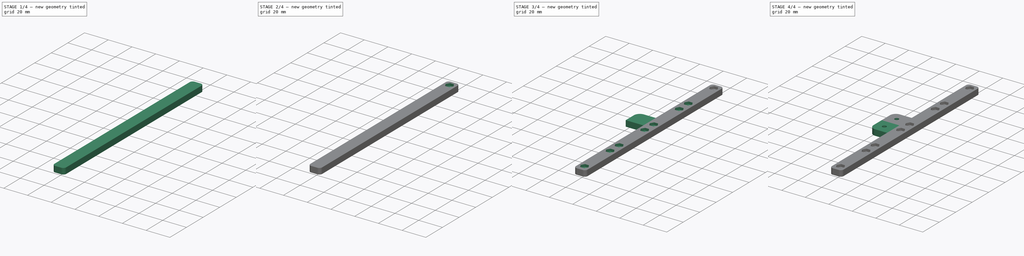
[diagram: build sequence overview — one tinted view per stage of 4, left to right]
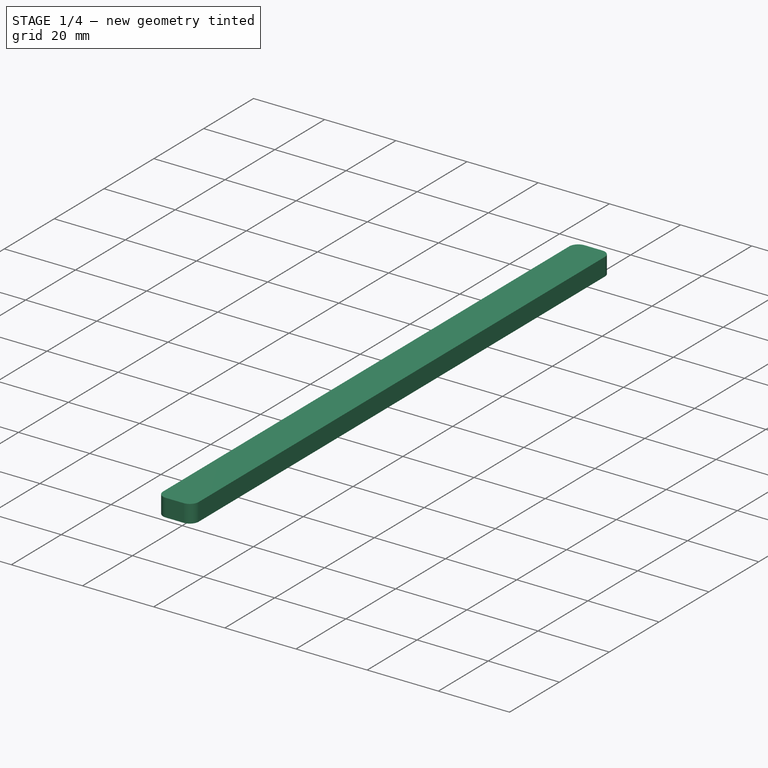
[diagram: stage 1 of 4 — iso view after this stage's code; geometry added in this stage tinted green]
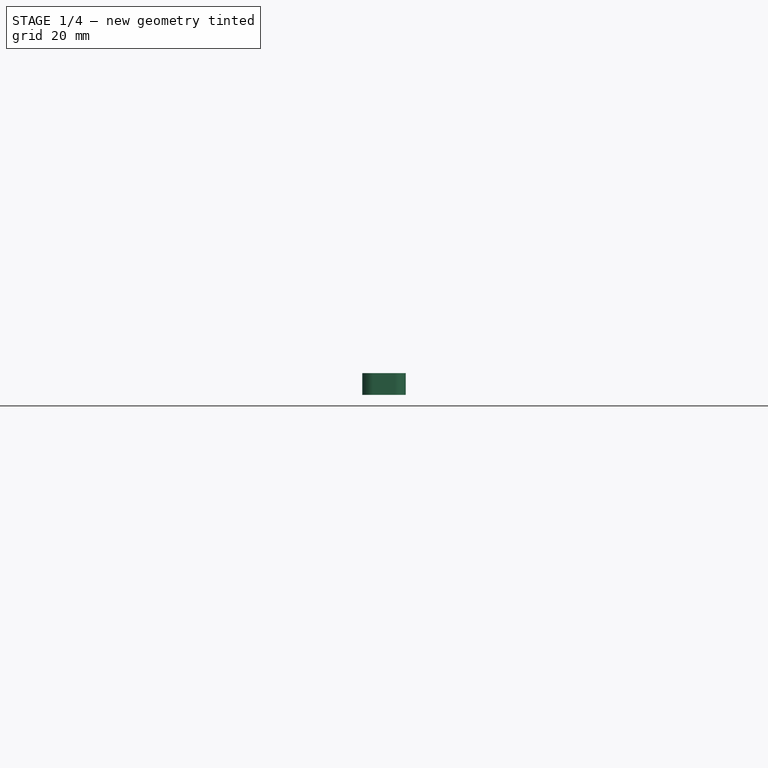
[diagram: stage 1 of 4 — front view after this stage's code; geometry added in this stage tinted green]
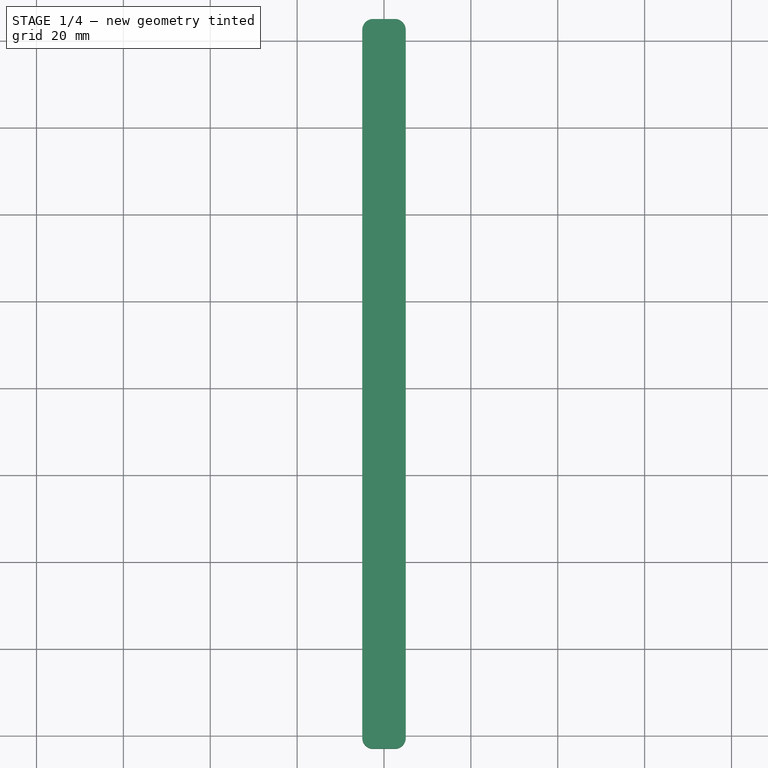
[diagram: stage 1 of 4 — top view after this stage's code; geometry added in this stage tinted green]
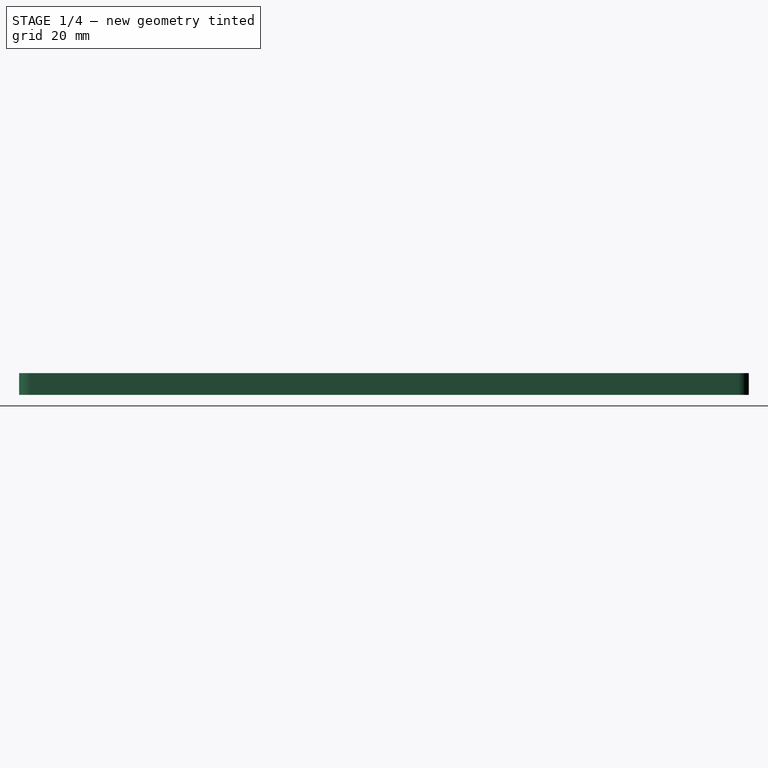
[diagram: stage 1 of 4 — right view after this stage's code; geometry added in this stage tinted green]
FCSTD DOCUMENT  (FreeCAD 0.19R)
Label: Rack_for_post
License: All rights reserved
LicenseURL: http://en.wikipedia.org/wiki/All_rights_reserved
objects: Sketcher::SketchObject×6, PartDesign::Pad×2, PartDesign::Mirrored×2, PartDesign::Pocket×2, PartDesign::Hole×2, PartDesign::LinearPattern×2, PartDesign::MultiTransform×1, PartDesign::Body×1
note: 24 computed .brp shape members not serialized (recipe doc carries the construction recipe); baked Part::Feature solids carry a one-line shape summary decoded from their .brp

FEATURE [Sketcher::SketchObject] Sketch  label="rod_sketch"
  FullyConstrained = true
  MapMode = 5
  Support = -> [XY_Plane]
  sketch-geometry (8):
    g0: LineSegment StartX=0 StartY=5 StartZ=0 EndX=-2.5 EndY=5 EndZ=0
    g1: LineSegment StartX=-5 StartY=2.5 StartZ=0 EndX=-5 EndY=-160.5 EndZ=0
    g2: LineSegment StartX=-2.5 StartY=-163 StartZ=0 EndX=0 EndY=-163 EndZ=0
    g3: LineSegment StartX=0 StartY=-163 StartZ=0 EndX=0 EndY=5 EndZ=0
    g4: ArcOfCircle CenterX=-2.5 CenterY=2.5 CenterZ=0 NormalX=0 NormalY=0 NormalZ=1 AngleXU=0 Radius=2.5 StartAngle=1.5708 EndAngle=3.14159
    g5: GeomPoint X=-5 Y=5 Z=0
    g6: ArcOfCircle CenterX=-2.5 CenterY=-160.5 CenterZ=0 NormalX=0 NormalY=0 NormalZ=1 AngleXU=0 Radius=2.5 StartAngle=3.14159 EndAngle=4.71239
    g7: GeomPoint X=-5 Y=-163 Z=0
  constraints (20):
    c: Coincident(g2,g3)
    c: Coincident(g3,g0)
    c: Horizontal(g0)
    c: Horizontal(g2)
    c: Vertical(g1)
    c: Vertical(g3)
    c: PointOnObject(g0,g-2)
    c: DistanceX(g5,g0) = 5
    c: Distance(g0,g-1) = 5
    c: PointOnObject(g5,g0)
    c: PointOnObject(g5,g1)
    c: Tangent(g0,g4) = -1.5708
    c: Tangent(g1,g4) = -1.5708
    c: Radius(g4) = 2.5
    c: DistanceY(g3,g3) = 168
    c: PointOnObject(g7,g2)
    c: PointOnObject(g7,g1)
    c: Tangent(g2,g6) = -1.5708
    c: Tangent(g1,g6) = -1.5708
    c: Radius(g6) = 2.5
FEATURE [PartDesign::Pad] Pad  label="rod"
  Direction = (1,1,1)
  Length = 5
  Length2 = 100
  Profile = -> Sketch
  Type = 0
FEATURE [PartDesign::Mirrored] Mirrored  label="rod_mirror"
  BaseFeature = -> Pad
  MirrorPlane = -> Sketch [V_Axis]
  Originals = -> [Pad]
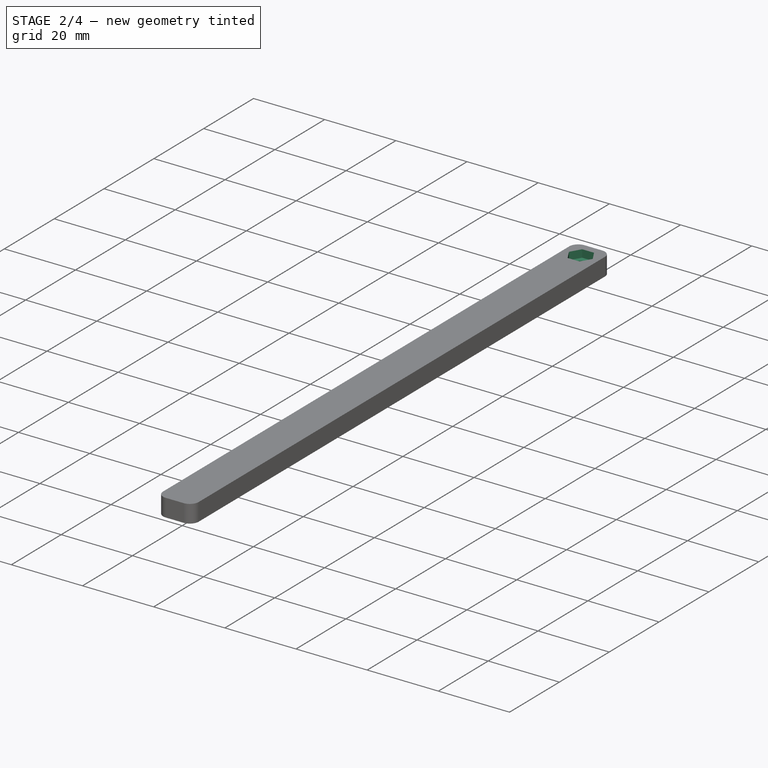
[diagram: stage 2 of 4 — iso view after this stage's code; geometry added in this stage tinted green]
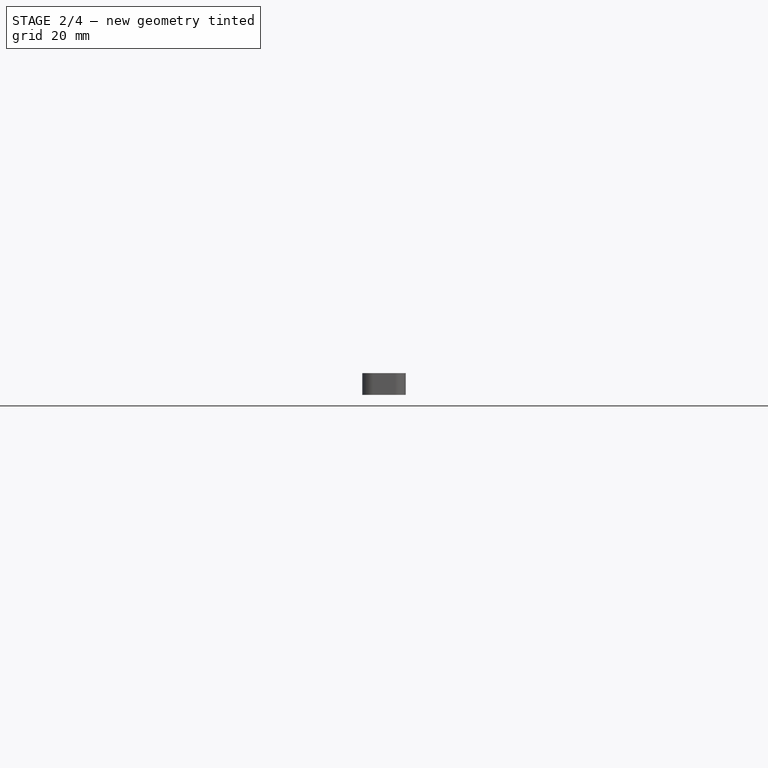
[diagram: stage 2 of 4 — front view after this stage's code; geometry added in this stage tinted green]
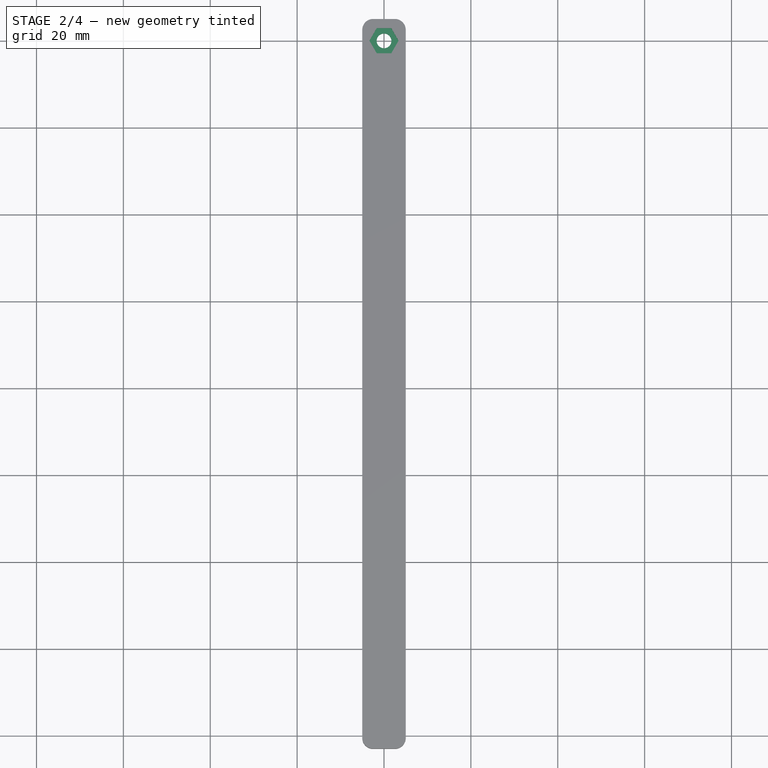
[diagram: stage 2 of 4 — top view after this stage's code; geometry added in this stage tinted green]
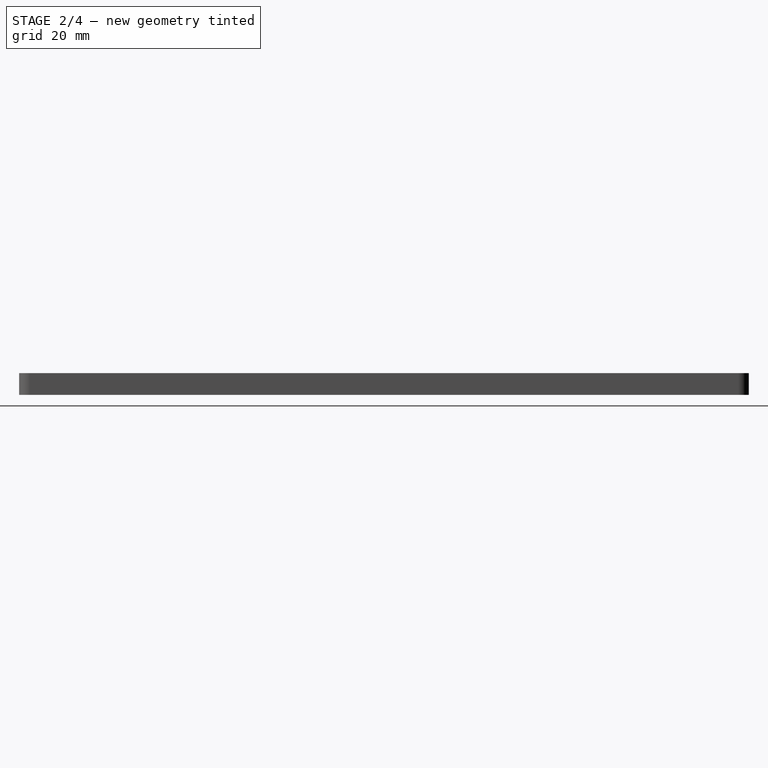
[diagram: stage 2 of 4 — right view after this stage's code; geometry added in this stage tinted green]
FEATURE [Sketcher::SketchObject] Sketch001  label="M3_hex_sketch"
  FullyConstrained = true
  MapMode = 5
  Placement = pos=(0,0,5) rot=(0,0,1;0rad)
  Support = -> [Mirrored]
  sketch-geometry (7):
    g0: LineSegment StartX=3.34863 StartY=0 StartZ=0 EndX=1.67432 EndY=2.9 EndZ=0
    g1: LineSegment StartX=1.67432 StartY=2.9 StartZ=0 EndX=-1.67432 EndY=2.9 EndZ=0
    g2: LineSegment StartX=-1.67432 StartY=2.9 StartZ=0 EndX=-3.34863 EndY=0 EndZ=0
    g3: LineSegment StartX=-3.34863 StartY=0 StartZ=0 EndX=-1.67432 EndY=-2.9 EndZ=0
    g4: LineSegment StartX=-1.67432 StartY=-2.9 StartZ=0 EndX=1.67432 EndY=-2.9 EndZ=0
    g5: LineSegment StartX=1.67432 StartY=-2.9 StartZ=0 EndX=3.34863 EndY=0 EndZ=0
    g6: Circle CenterX=0 CenterY=0 CenterZ=0 NormalX=0 NormalY=0 NormalZ=1 AngleXU=0 Radius=3.34863
  constraints (16):
    c: Coincident(g0,g1)
    c: Coincident(g1,g2)
    c: Coincident(g2,g3)
    c: Coincident(g3,g4)
    c: Coincident(g4,g5)
    c: Coincident(g5,g0)
    c: Equal(g0, g1-g5) x5
    c: PointOnObject(g0,g6)
    c: PointOnObject(g1,g6)
    c: PointOnObject(g2,g6)
    c: PointOnObject(g3,g6)
    c: PointOnObject(g4,g6)
    c: PointOnObject(g5,g6)
    c: Coincident(g6,g-1)
    c: PointOnObject(g5,g-1)
    c: DistanceY(g3,g1) = 5.8
FEATURE [PartDesign::Pocket] Pocket  label="M3_hex"
  BaseFeature = -> Mirrored
  Length = 2.15
  Length2 = 100
  Profile = -> Sketch001
  Type = 0
FEATURE [Sketcher::SketchObject] Sketch002  label="M3_hole_sektch"
  FullyConstrained = true
  MapMode = 5
  Placement = pos=(0,0,2.85) rot=(0,0,1;0rad)
  Support = -> [Pocket]
  sketch-geometry (1):
    g0: Circle CenterX=0 CenterY=0 CenterZ=0 NormalX=0 NormalY=0 NormalZ=1 AngleXU=0 Radius=1
  constraints (2):
    c: Coincident(g0,g-1)
    c: Radius(g0) = 1
FEATURE [PartDesign::Hole] Hole  label="M3_hole"
  BaseFeature = -> Pocket
  Depth = 25
  DepthType = 1
  Diameter = 3.4
  DrillForDepth = false
  DrillPoint = 1
  DrillPointAngle = 118
  HoleCutCountersinkAngle = 90
  HoleCutCustomValues = false
  HoleCutDepth = 0
  HoleCutDiameter = 6.1
  HoleCutType = 0
  ModelActualThread = false
  Profile = -> Sketch002
  Tapered = false
  TaperedAngle = 90
  ThreadAngle = 0
  ThreadClass = 0
  ThreadCutOffInner = 0
  ThreadCutOffOuter = 0
  ThreadDirection = 0
  ThreadFit = 0
  ThreadPitch = 0
  ThreadSize = 9
  ThreadType = 1
  Threaded = false
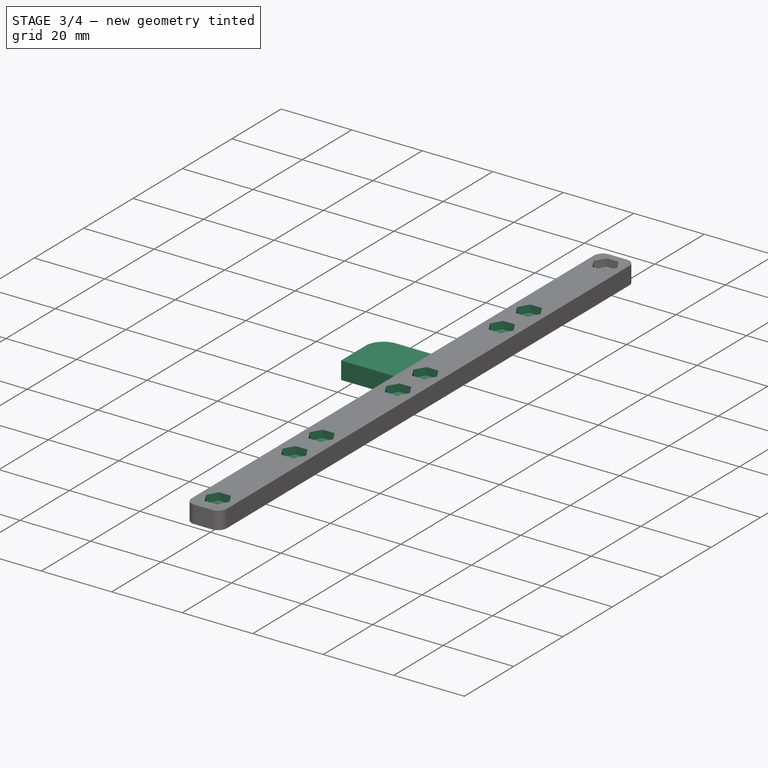
[diagram: stage 3 of 4 — iso view after this stage's code; geometry added in this stage tinted green]
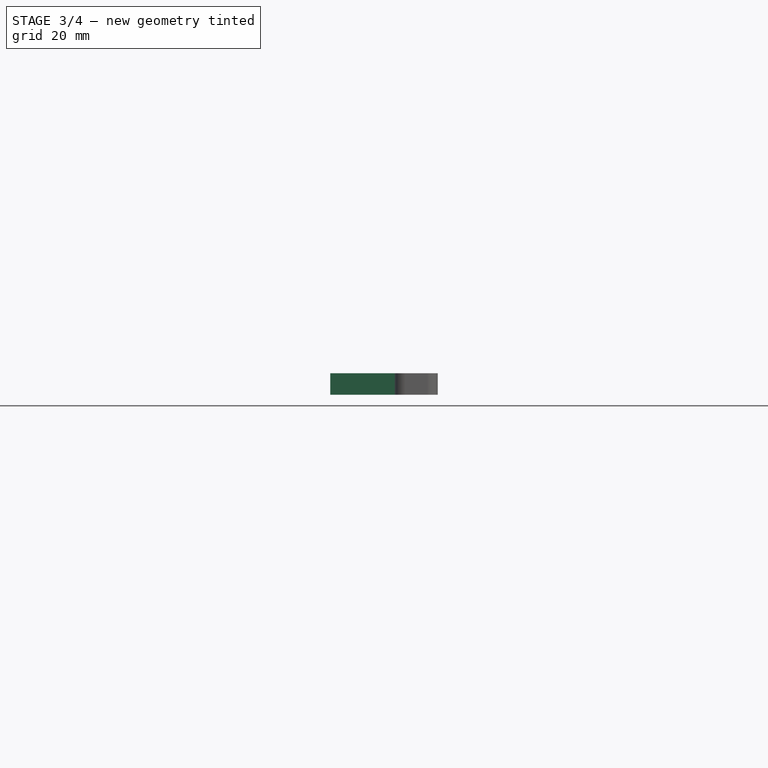
[diagram: stage 3 of 4 — front view after this stage's code; geometry added in this stage tinted green]
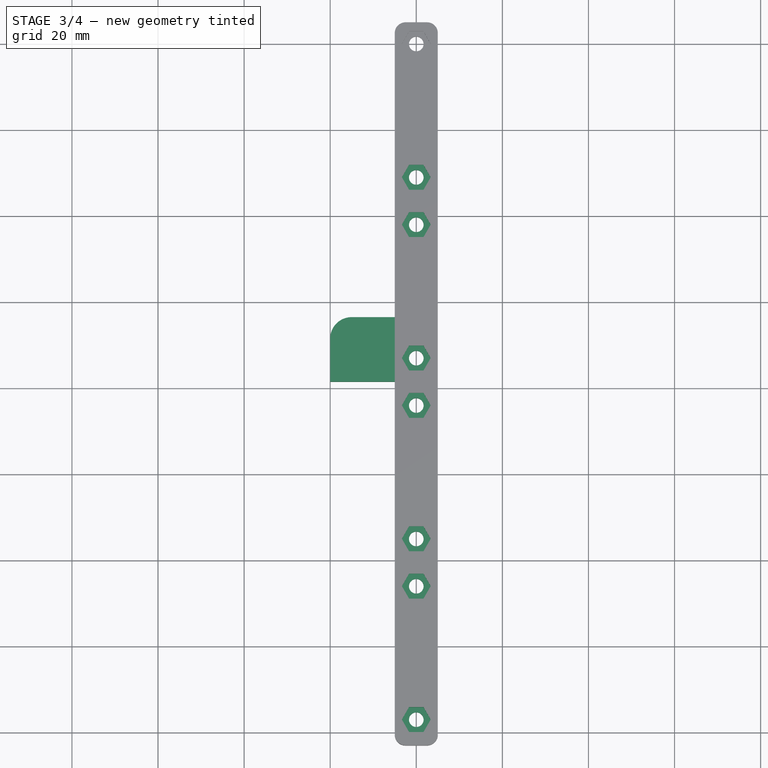
[diagram: stage 3 of 4 — top view after this stage's code; geometry added in this stage tinted green]
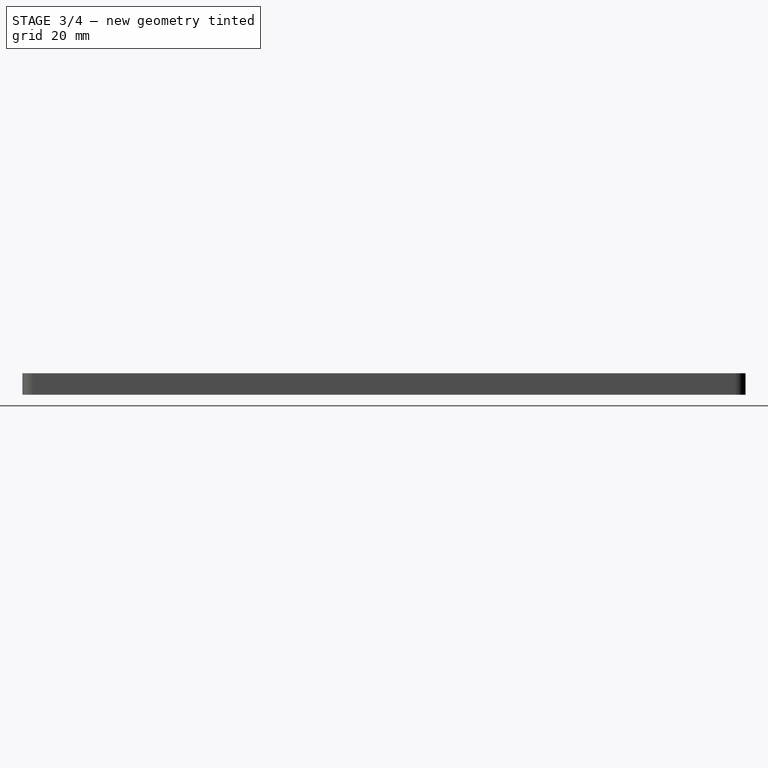
[diagram: stage 3 of 4 — right view after this stage's code; geometry added in this stage tinted green]
FEATURE [PartDesign::LinearPattern] LinearPattern
  Direction = -> Sketch001 [V_Axis]
  Length = 31
  Occurrences = 2
  Reversed = true
FEATURE [PartDesign::LinearPattern] LinearPattern001
  Direction = -> Sketch001 [V_Axis]
  Length = 126
  Occurrences = 4
  Reversed = true
FEATURE [PartDesign::MultiTransform] MultiTransform  label="M3_sys_array"
  BaseFeature = -> Hole
  Originals = -> [Pocket,Hole]
  Transformations = -> [LinearPattern,LinearPattern001]
FEATURE [Sketcher::SketchObject] Sketch003  label="half_ear_sketch"
  ExternalGeometry = -> [MultiTransform]
  FullyConstrained = true
  MapMode = 5
  Placement = pos=(0,0,5) rot=(0,0,1;0rad)
  Support = -> [MultiTransform]
  sketch-geometry (10):
    g0: GeomPoint X=0 Y=-78.5 Z=0
    g1: LineSegment StartX=0 StartY=-75.9 StartZ=0 EndX=0 EndY=-78.5 EndZ=0
    g2: LineSegment StartX=0 StartY=-78.5 StartZ=0 EndX=0 EndY=-81.1 EndZ=0
    g3: LineSegment StartX=0 StartY=-78.5 StartZ=0 EndX=-5 EndY=-78.5 EndZ=0
    g4: LineSegment StartX=-5 StartY=-78.5 StartZ=0 EndX=-20 EndY=-78.5 EndZ=0
    g5: LineSegment StartX=-20 StartY=-78.5 StartZ=0 EndX=-20 EndY=-68.5 EndZ=0
    g6: LineSegment StartX=-15 StartY=-63.5 StartZ=0 EndX=-5 EndY=-63.5 EndZ=0
    g7: LineSegment StartX=-5 StartY=-63.5 StartZ=0 EndX=-5 EndY=-78.5 EndZ=0
    g8: ArcOfCircle CenterX=-15 CenterY=-68.5 CenterZ=0 NormalX=0 NormalY=0 NormalZ=1 AngleXU=0 Radius=5 StartAngle=1.5708 EndAngle=3.14159
    g9: GeomPoint X=-20 Y=-63.5 Z=0
  constraints (24):
    c: Coincident(g1,g-3)
    c: Coincident(g1,g0)
    c: Vertical(g1)
    c: Coincident(g2,g1)
    c: Coincident(g2,g-3)
    c: Equal(g1,g2)
    c: Coincident(g3,g0)
    c: PointOnObject(g3,g-4)
    c: Horizontal(g3)
    c: Coincident(g4,g5)
    c: Coincident(g6,g7)
    c: Coincident(g7,g4)
    c: Horizontal(g4)
    c: Horizontal(g6)
    c: Vertical(g5)
    c: Vertical(g7)
    c: Coincident(g4,g3)
    c: DistanceY(g7,g7) = 15
    c: DistanceX(g4,g4) = 15
    c: PointOnObject(g9,g5)
    c: PointOnObject(g9,g6)
    c: Tangent(g5,g8) = 1.5708
    c: Tangent(g6,g8) = 1.5708
    c: Radius(g8) = 5
FEATURE [PartDesign::Pad] Pad001  label="half_ear"
  BaseFeature = -> MultiTransform
  Direction = (1,1,1)
  Length = 5
  Length2 = 100
  Profile = -> Sketch003
  Reversed = true
  Type = 0
FEATURE [Sketcher::SketchObject] Sketch004  label="M3_hex_sketch_2"
  ExternalGeometry = -> [Pad001]
  FullyConstrained = true
  MapMode = 5
  Placement = pos=(0,0,9e-16) rot=(1,0,0;3.14159rad)
  Support = -> [Pad001]
  sketch-geometry (8):
    g0: GeomPoint X=-12.5 Y=71 Z=0
    g1: LineSegment StartX=-9.6 StartY=72.6743 StartZ=0 EndX=-12.5 EndY=74.3486 EndZ=0
    g2: LineSegment StartX=-12.5 StartY=74.3486 StartZ=0 EndX=-15.4 EndY=72.6743 EndZ=0
    g3: LineSegment StartX=-15.4 StartY=72.6743 StartZ=0 EndX=-15.4 EndY=69.3257 EndZ=0
    g4: LineSegment StartX=-15.4 StartY=69.3257 StartZ=0 EndX=-12.5 EndY=67.6514 EndZ=0
    g5: LineSegment StartX=-12.5 StartY=67.6514 StartZ=0 EndX=-9.6 EndY=69.3257 EndZ=0
    g6: LineSegment StartX=-9.6 StartY=69.3257 StartZ=0 EndX=-9.6 EndY=72.6743 EndZ=0
    g7: Circle CenterX=-12.5 CenterY=71 CenterZ=0 NormalX=0 NormalY=0 NormalZ=1 AngleXU=0 Radius=3.34863
  constraints (18):
    c: Distance(g0,g-4) = 7.5
    c: Distance(g0,g-3) = 7.5
    c: Coincident(g1,g2)
    c: Coincident(g2,g3)
    c: Coincident(g3,g4)
    c: Coincident(g4,g5)
    c: Coincident(g5,g6)
    c: Coincident(g6,g1)
    c: Equal(g1, g2-g6) x5
    c: PointOnObject(g1,g7)
    c: PointOnObject(g2,g7)
    c: PointOnObject(g3,g7)
    c: PointOnObject(g4,g7)
    c: PointOnObject(g5,g7)
    c: PointOnObject(g6,g7)
    c: Coincident(g7,g0)
    c: Vertical(g6)
    c: Distance(g2,g1) = 5.8
FEATURE [PartDesign::Pocket] Pocket001  label="M3_hex_2"
  BaseFeature = -> Pad001
  Length = 2.15
  Length2 = 100
  Profile = -> Sketch004
  Type = 0
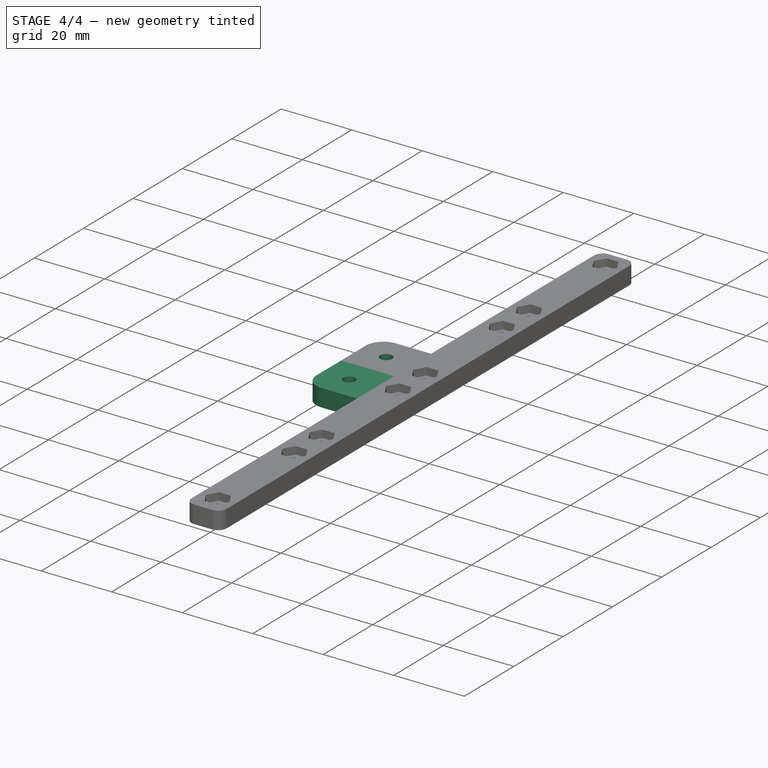
[diagram: stage 4 of 4 — iso view after this stage's code; geometry added in this stage tinted green]
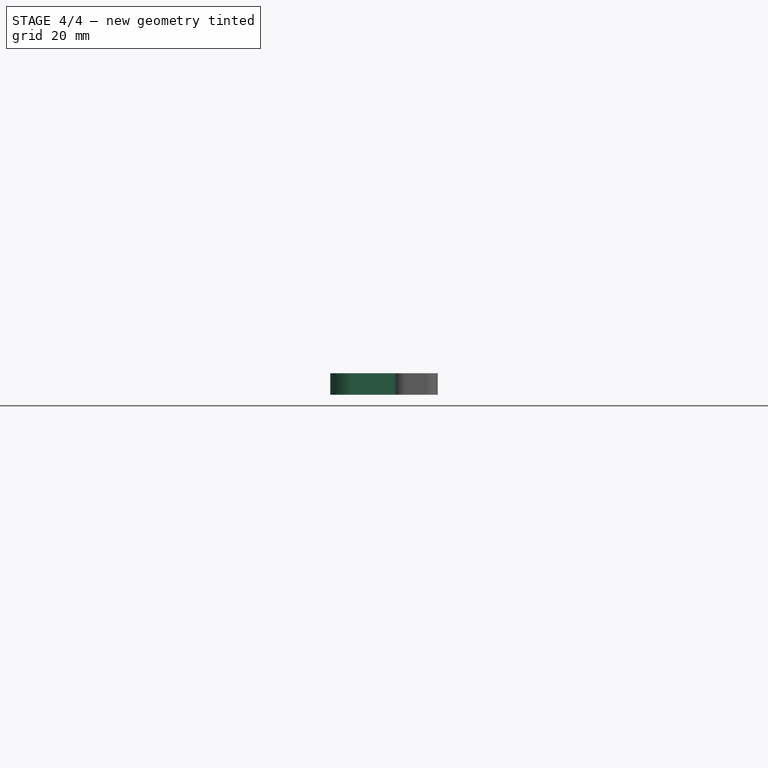
[diagram: stage 4 of 4 — front view after this stage's code; geometry added in this stage tinted green]
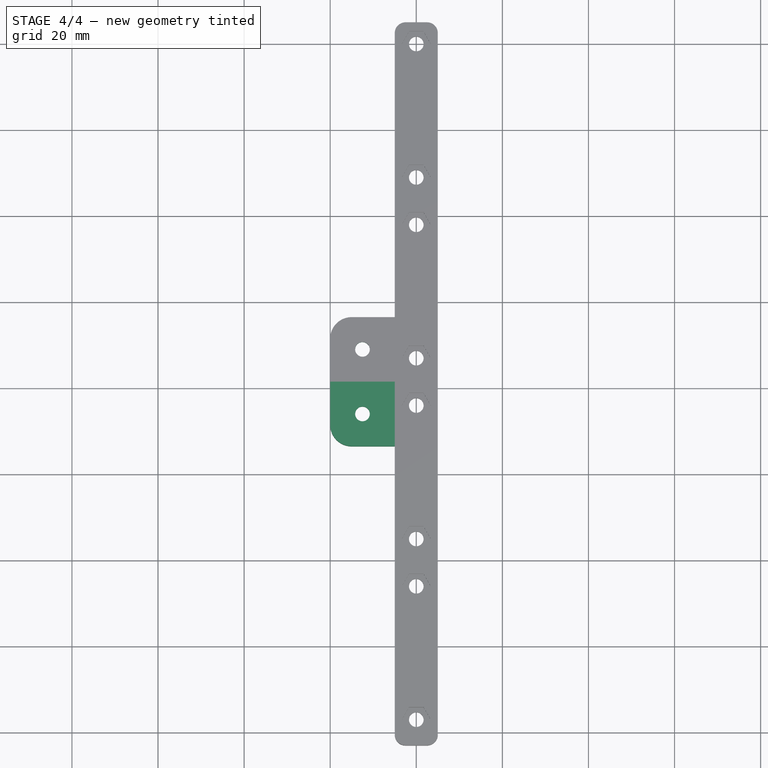
[diagram: stage 4 of 4 — top view after this stage's code; geometry added in this stage tinted green]
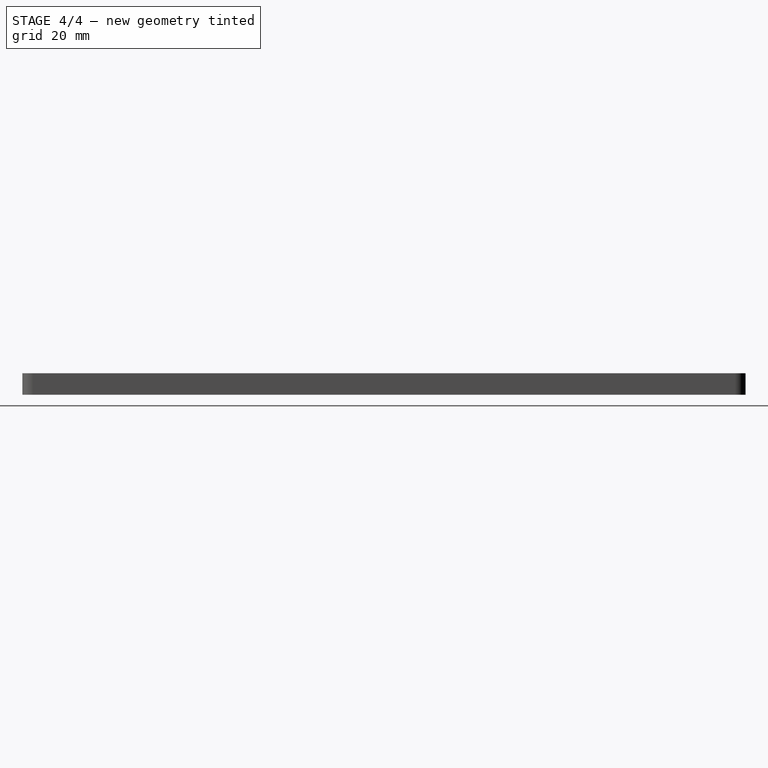
[diagram: stage 4 of 4 — right view after this stage's code; geometry added in this stage tinted green]
FEATURE [Sketcher::SketchObject] Sketch005  label="M3_hole_sketch_2"
  ExternalGeometry = -> [Pocket001]
  FullyConstrained = true
  MapMode = 5
  Placement = pos=(0,0,2.15) rot=(1,0,0;3.14159rad)
  Support = -> [Pocket001]
  sketch-geometry (5):
    g0: LineSegment StartX=-12.5 StartY=74.3486 StartZ=0 EndX=-12.5 EndY=67.6514 EndZ=0
    g1: GeomPoint X=-12.5 Y=71 Z=0
    g2: LineSegment StartX=-12.5 StartY=74.3486 StartZ=0 EndX=-12.5 EndY=71 EndZ=0
    g3: LineSegment StartX=-12.5 StartY=71 StartZ=0 EndX=-12.5 EndY=67.6514 EndZ=0
    g4: Circle CenterX=-12.5 CenterY=71 CenterZ=0 NormalX=0 NormalY=0 NormalZ=1 AngleXU=0 Radius=1
  constraints (10):
    c: Coincident(g0,g-3)
    c: Coincident(g0,g-4)
    c: PointOnObject(g1,g0)
    c: Coincident(g2,g0)
    c: Coincident(g2,g1)
    c: Coincident(g3,g1)
    c: Coincident(g3,g0)
    c: Equal(g2,g3)
    c: Coincident(g4,g1)
    c: Radius(g4) = 1
FEATURE [PartDesign::Hole] Hole001  label="M3_hole_2"
  BaseFeature = -> Pocket001
  Depth = 25
  DepthType = 1
  Diameter = 3.4
  DrillForDepth = false
  DrillPoint = 1
  DrillPointAngle = 118
  HoleCutCountersinkAngle = 90
  HoleCutCustomValues = false
  HoleCutDepth = 0
  HoleCutDiameter = 6.1
  HoleCutType = 0
  ModelActualThread = false
  Profile = -> Sketch005
  Tapered = false
  TaperedAngle = 90
  ThreadAngle = 0
  ThreadClass = 0
  ThreadCutOffInner = 0
  ThreadCutOffOuter = 0
  ThreadDirection = 0
  ThreadFit = 0
  ThreadPitch = 0
  ThreadSize = 9
  ThreadType = 1
  Threaded = false
FEATURE [PartDesign::Mirrored] Mirrored001  label="ear"
  BaseFeature = -> Hole001
  MirrorPlane = -> Hole001 [Face82]
  Originals = -> [Pad001,Pocket001,Hole001]
FEATURE [PartDesign::Body] Body  label="Rack_for_post"
  Group = -> [Sketch,Pad,Mirrored,Sketch001,Pocket,Sketch002,Hole,MultiTransform,LinearPattern,LinearPattern001,Sketch003,Pad001,Sketch004,Pocket001,Sketch005,Hole001,Mirrored001]
  Origin = -> Origin
  Tip = -> Mirrored001
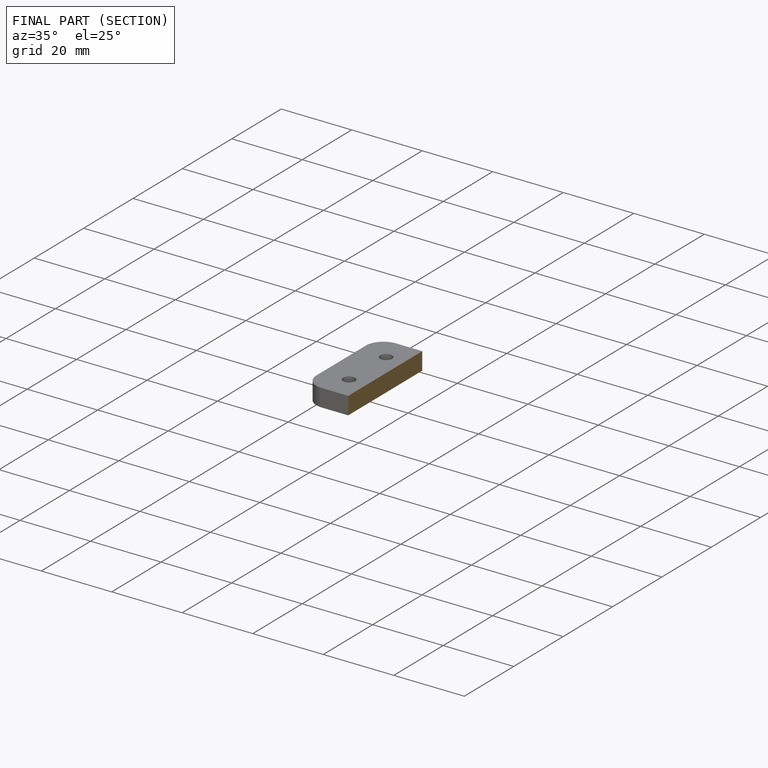
[diagram: finished part — half-section view (interior)]
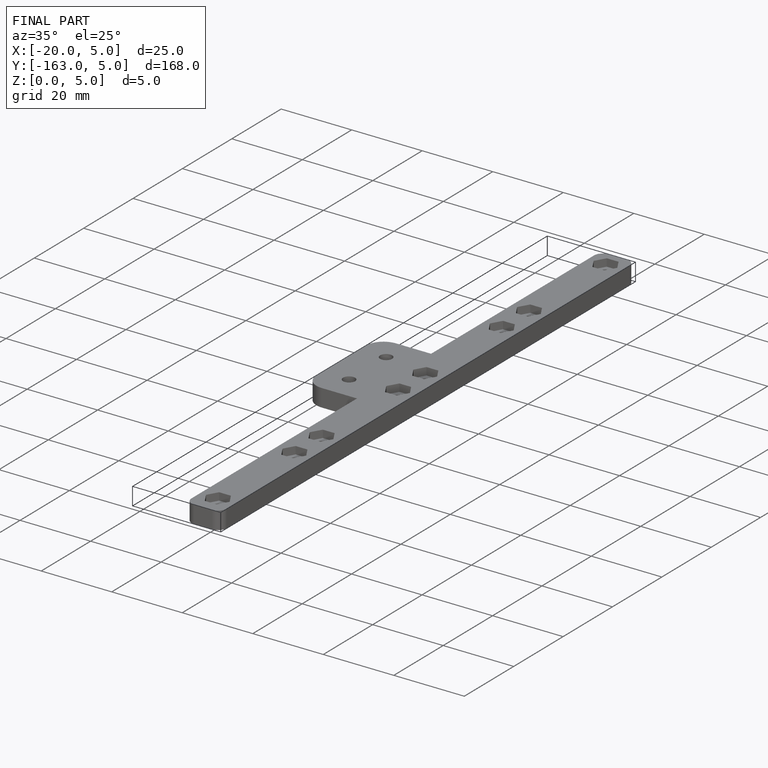
[diagram: finished part — iso view with bounding-box wireframe]
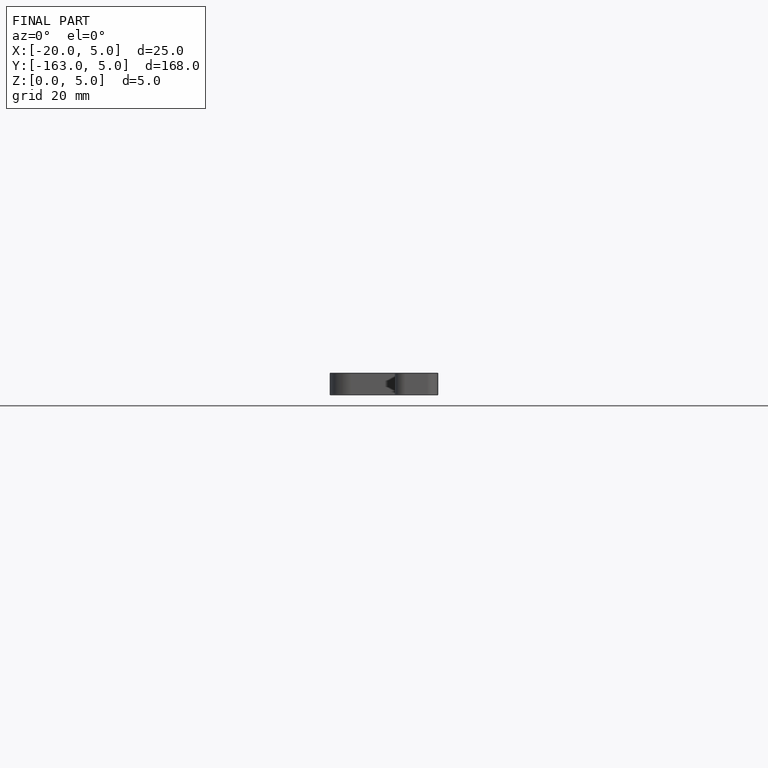
[diagram: finished part — front view with bounding-box wireframe]
